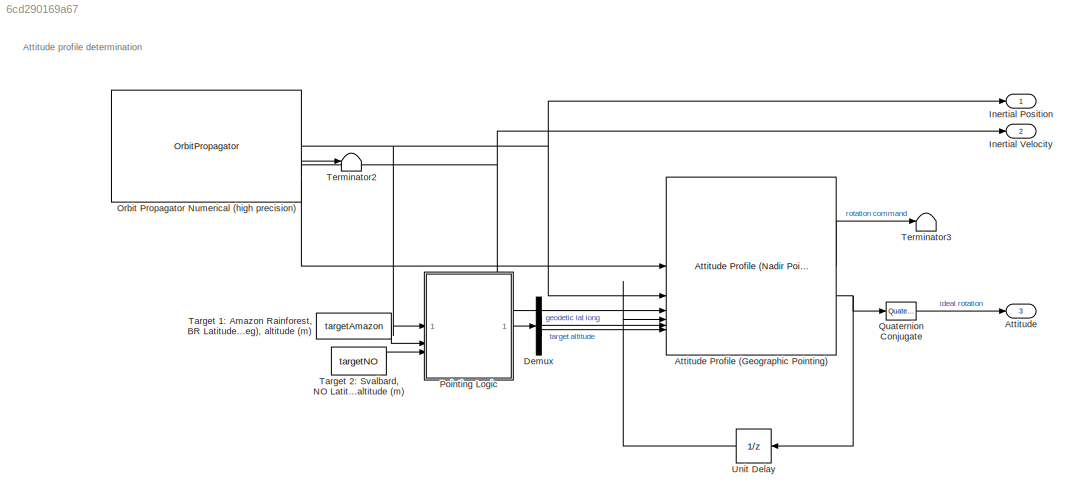
MODEL slx_6cd290169a67
KIND model
CONFIG AbsTol = 1e-5
CONFIG EnableMultiTasking = off
CONFIG FixedStep = 1
CONFIG MaxStep = 5
CONFIG MinStep = auto
CONFIG RelTol = 0.5e-5
CONFIG SampleTimeConstraint = Unconstrained
CONFIG SolverName = VariableStepAuto
CONFIG StartTime = 0.0
CONFIG StopTime = seconds(missionduration)
BLOCK [Outport] Attitude
  Port = 3
BLOCK [Reference] Attitude Profile (Geographic Pointing)  REF=aerolibsatdyn/Attitude Profile
(Nadir Pointing)
  SourceBlock = aerolibsatdyn/Attitude Profile\n(Nadir Pointing)
  SourceType = Attitude Profile
BLOCK [Demux] Demux
  Outputs = [2 1]
BLOCK [Outport] Inertial Position
BLOCK [Outport] Inertial Velocity
  Port = 2
BLOCK [OrbitPropagator] Orbit Propagator Numerical (high precision)
  argPeriapsis = 0
  customJ2 = 1.0826269e-03
  customMu = 4.305e13
  customOmega = 4.06125949e-3
  customR = 3396200
  eccentricity = 0.05
  fixedPosition = [-4142689.0 -2676864.7 -4669861.6]
  fixedVelocity = [1452.7 -6720.7 2568.1]
  inclination = 70
  inertialPosition = [3649700.0 3308200.0 -4676600.0]
  inertialVelocity = [-2750.8 6666.4 2573.4]
  outputTransform = on
  propagator = Numerical (high precision)
  raan = 215
  semiMajorAxis = 7200000
  startDate = juliandate(missionstartdate)
  trueAnomaly = 200
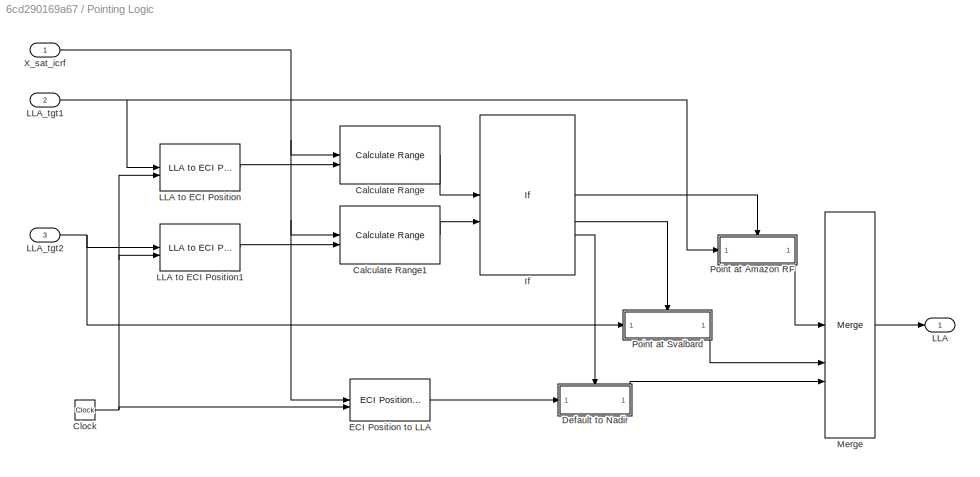
BLOCK [SubSystem] Pointing Logic
  NameLocation = top
BLOCK [Reference] Pointing Logic/Calculate Range  REF=aerolibguid/Calculate
Range
  SourceBlock = aerolibguid/Calculate\nRange
  SourceType = Calculate Range
BLOCK [Reference] Pointing Logic/Calculate Range1  REF=aerolibguid/Calculate
Range
  SourceBlock = aerolibguid/Calculate\nRange
  SourceType = Calculate Range
BLOCK [Clock] Pointing Logic/Clock
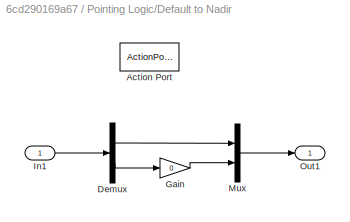
BLOCK [SubSystem] Pointing Logic/Default to Nadir
  TreatAsAtomicUnit = on
BLOCK [ActionPort] Pointing Logic/Default to Nadir/Action Port
  ActionPortLabel = else
BLOCK [Demux] Pointing Logic/Default to Nadir/Demux
  Outputs = [2, 1]
BLOCK [Gain] Pointing Logic/Default to Nadir/Gain
  Gain = 0
BLOCK [Inport] Pointing Logic/Default to Nadir/In1
BLOCK [Mux] Pointing Logic/Default to Nadir/Mux
  DisplayOption = bar
  Inputs = [2, 1]
BLOCK [Outport] Pointing Logic/Default to Nadir/Out1
BLOCK [Reference] Pointing Logic/ECI Position to LLA  REF=aerolibtransform2/ECI Position to LLA
  AttributesFormatString = %<red>
  SourceBlock = aerolibtransform2/ECI Position to LLA
  SourceType = ECItoLLA
BLOCK [If] Pointing Logic/If
  ElseIfExpressions = u2 < 2.5e6
  IfExpression = u1 < 2.5e6
  NumInputs = 2
BLOCK [Outport] Pointing Logic/LLA
BLOCK [Reference] Pointing Logic/LLA to ECI Position  REF=aerolibtransform2/LLA to ECI Position
  AttributesFormatString = %<red>
  SourceBlock = aerolibtransform2/LLA to ECI Position
  SourceType = LLAtoECI
BLOCK [Reference] Pointing Logic/LLA to ECI Position1  REF=aerolibtransform2/LLA to ECI Position
  AttributesFormatString = %<red>
  SourceBlock = aerolibtransform2/LLA to ECI Position
  SourceType = LLAtoECI
BLOCK [Inport] Pointing Logic/LLA_tgt1
  Port = 2
BLOCK [Inport] Pointing Logic/LLA_tgt2
  Port = 3
BLOCK [Merge] Pointing Logic/Merge
  Inputs = 3
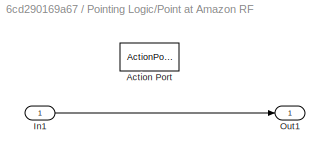
BLOCK [SubSystem] Pointing Logic/Point at Amazon RF
  TreatAsAtomicUnit = on
BLOCK [ActionPort] Pointing Logic/Point at Amazon RF/Action Port
  ActionPortLabel = if(u1 < 2.5e6)
BLOCK [Inport] Pointing Logic/Point at Amazon RF/In1
BLOCK [Outport] Pointing Logic/Point at Amazon RF/Out1
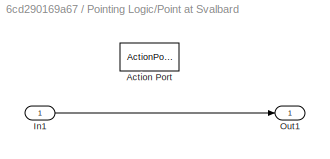
BLOCK [SubSystem] Pointing Logic/Point at Svalbard
  TreatAsAtomicUnit = on
BLOCK [ActionPort] Pointing Logic/Point at Svalbard/Action Port
  ActionPortLabel = elseif(u2 < 2.5e6)
BLOCK [Inport] Pointing Logic/Point at Svalbard/In1
BLOCK [Outport] Pointing Logic/Point at Svalbard/Out1
BLOCK [Inport] Pointing Logic/X_sat_icrf
BLOCK [Reference] Quaternion Conjugate  REF=aerolibutil/Quaternion
Conjugate
  SourceBlock = aerolibutil/Quaternion\nConjugate
  SourceType = Quaternion Conjugate
BLOCK [Constant] Target 1: Amazon Rainforest, BR Latitude (deg), Longitude (deg), altitude (m)
  NameLocation = left
  Value = targetAmazon
BLOCK [Constant] Target 2: Svalbard, NO Latitude (deg), Longitude (deg), altitude (m)
  NameLocation = left
  Value = targetNO
BLOCK [Terminator] Terminator2
BLOCK [Terminator] Terminator3
BLOCK [UnitDelay] Unit Delay
  HasFrameUpgradeWarning = on
  InitialCondition = [1 0 0 0]
  SampleTime = -1
ANNOTATION (root): Attitude profile determination
LINE Attitude Profile (Geographic Pointing):1 -> Terminator3:1
NET Attitude Profile (Geographic Pointing):2 -> Quaternion Conjugate:1, Unit Delay:1
LINE Demux:1 -> Attitude Profile (Geographic Pointing):5
LINE Demux:2 -> Attitude Profile (Geographic Pointing):6
NET Orbit Propagator Numerical (high precision):1 -> Attitude Profile (Geographic Pointing):2, Inertial Position:1, Pointing Logic:1
NET Orbit Propagator Numerical (high precision):2 -> Attitude Profile (Geographic Pointing):3, Inertial Velocity:1
LINE Orbit Propagator Numerical (high precision):3 -> Terminator2:1
LINE Orbit Propagator Numerical (high precision):4 -> Attitude Profile (Geographic Pointing):1
LINE Pointing Logic/Calculate Range1:1 -> Pointing Logic/If:2
LINE Pointing Logic/Calculate Range:1 -> Pointing Logic/If:1
NET Pointing Logic/Clock:1 -> Pointing Logic/ECI Position to LLA:2, Pointing Logic/LLA to ECI Position1:2, Pointing Logic/LLA to ECI Position:2
LINE Pointing Logic/Default to Nadir/Demux:1 -> Pointing Logic/Default to Nadir/Mux:1
LINE Pointing Logic/Default to Nadir/Demux:2 -> Pointing Logic/Default to Nadir/Gain:1
LINE Pointing Logic/Default to Nadir/Gain:1 -> Pointing Logic/Default to Nadir/Mux:2
LINE Pointing Logic/Default to Nadir/In1:1 -> Pointing Logic/Default to Nadir/Demux:1
LINE Pointing Logic/Default to Nadir/Mux:1 -> Pointing Logic/Default to Nadir/Out1:1
LINE Pointing Logic/Default to Nadir:1 -> Pointing Logic/Merge:3
LINE Pointing Logic/ECI Position to LLA:1 -> Pointing Logic/Default to Nadir:1
LINE Pointing Logic/If:1 -> Pointing Logic/Point at Amazon RF:ifaction
LINE Pointing Logic/If:2 -> Pointing Logic/Point at Svalbard:ifaction
LINE Pointing Logic/If:3 -> Pointing Logic/Default to Nadir:ifaction
LINE Pointing Logic/LLA to ECI Position1:1 -> Pointing Logic/Calculate Range1:2
LINE Pointing Logic/LLA to ECI Position:1 -> Pointing Logic/Calculate Range:2
NET Pointing Logic/LLA_tgt1:1 -> Pointing Logic/LLA to ECI Position:1, Pointing Logic/Point at Amazon RF:1
NET Pointing Logic/LLA_tgt2:1 -> Pointing Logic/LLA to ECI Position1:1, Pointing Logic/Point at Svalbard:1
LINE Pointing Logic/Merge:1 -> Pointing Logic/LLA:1
LINE Pointing Logic/Point at Amazon RF/In1:1 -> Pointing Logic/Point at Amazon RF/Out1:1
LINE Pointing Logic/Point at Amazon RF:1 -> Pointing Logic/Merge:1
LINE Pointing Logic/Point at Svalbard/In1:1 -> Pointing Logic/Point at Svalbard/Out1:1
LINE Pointing Logic/Point at Svalbard:1 -> Pointing Logic/Merge:2
NET Pointing Logic/X_sat_icrf:1 -> Pointing Logic/Calculate Range1:1, Pointing Logic/Calculate Range:1, Pointing Logic/ECI Position to LLA:1
LINE Pointing Logic:1 -> Demux:1
LINE Quaternion Conjugate:1 -> Attitude:1
LINE Target 1: Amazon Rainforest, BR Latitude (deg), Longitude (deg), altitude (m):1 -> Pointing Logic:2
LINE Target 2: Svalbard, NO Latitude (deg), Longitude (deg), altitude (m):1 -> Pointing Logic:3
LINE Unit Delay:1 -> Attitude Profile (Geographic Pointing):4
note: NET lines group one-source signal fan-out (src -> all destinations, sorted); 1:1 wires keep LINE
